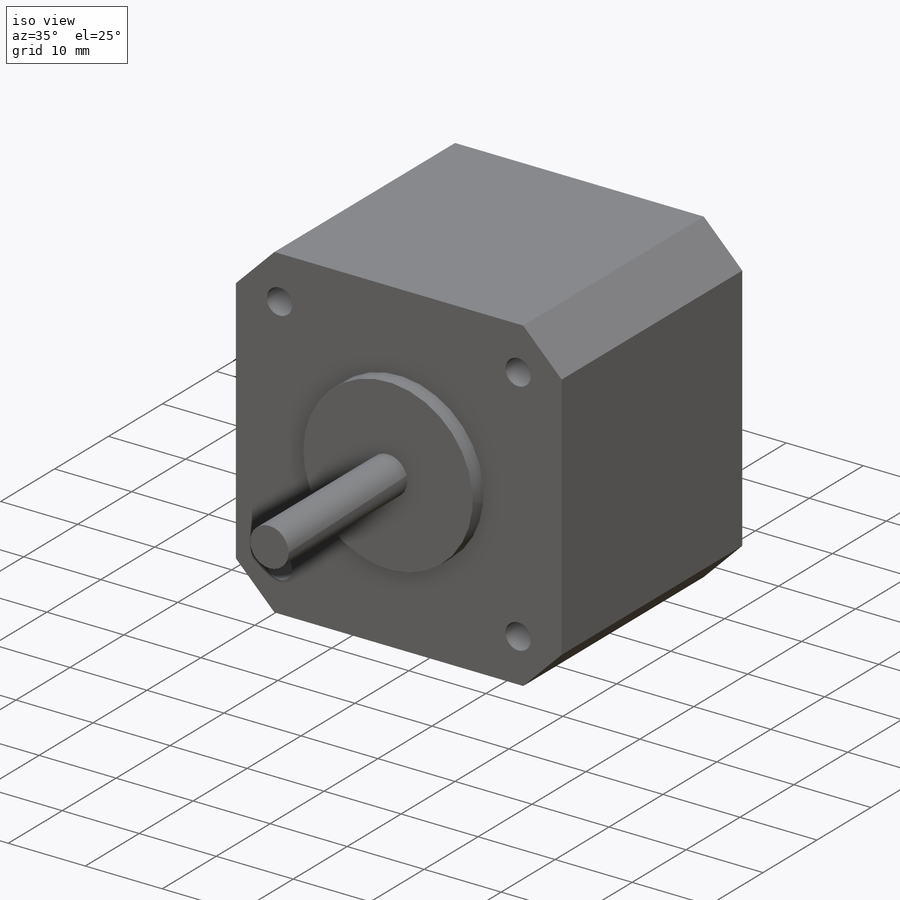
[diagram: iso view]
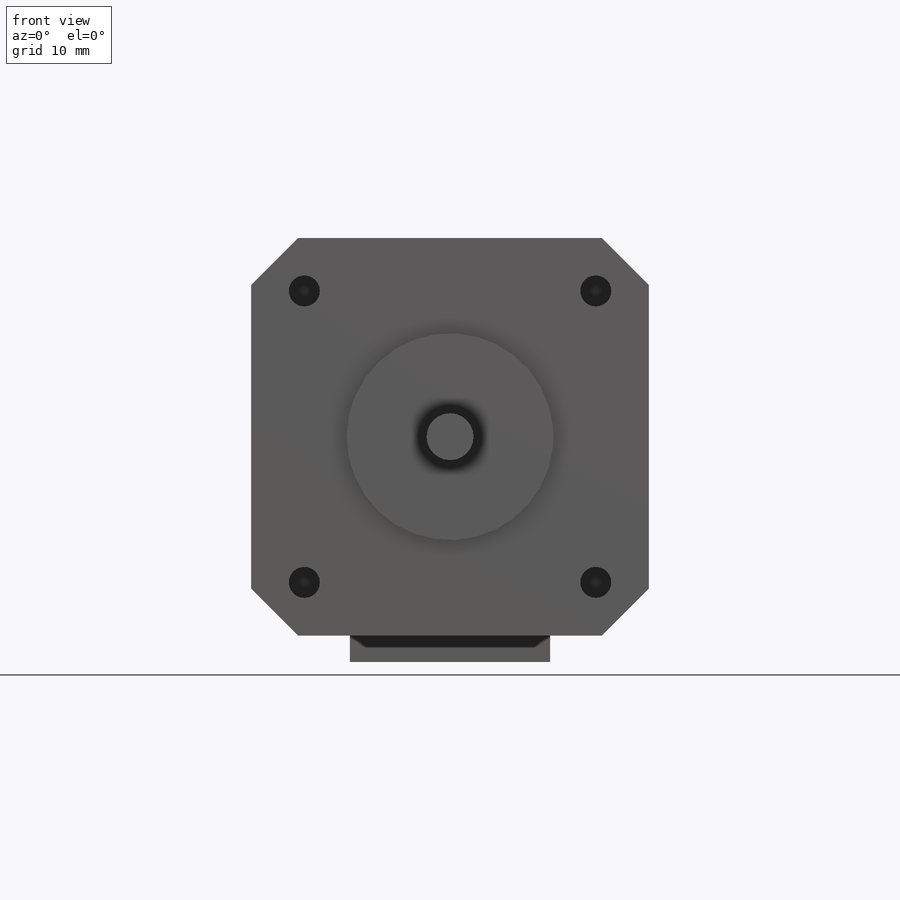
[diagram: front view]
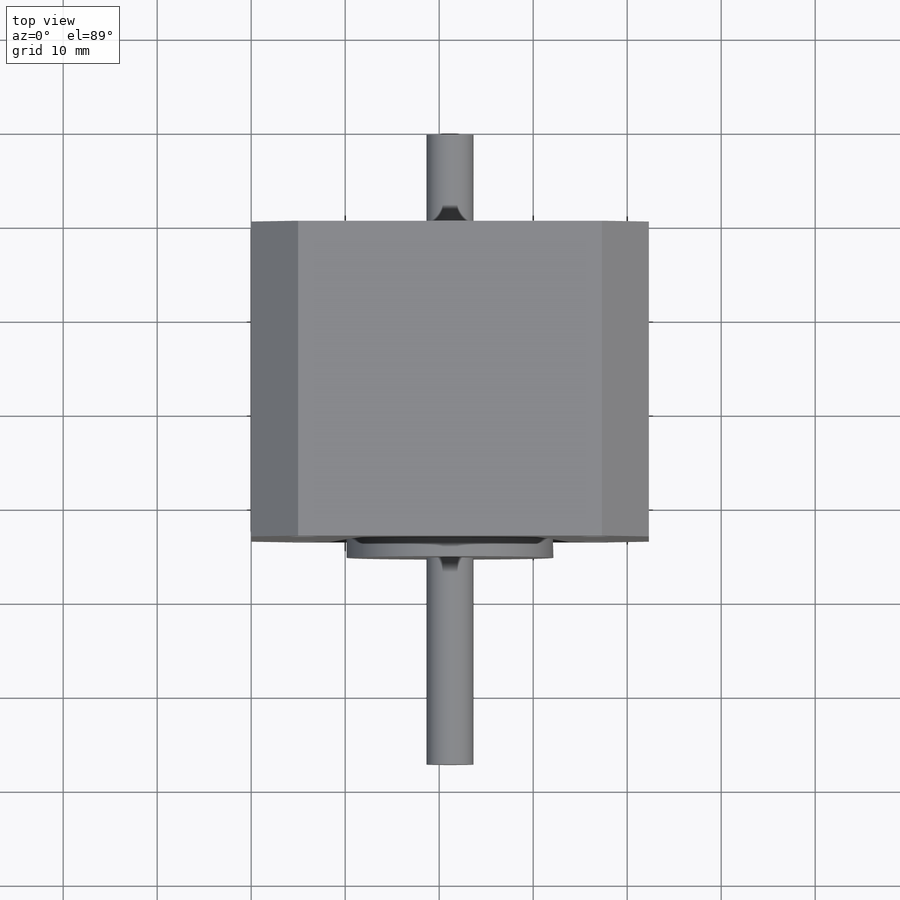
[diagram: top view]
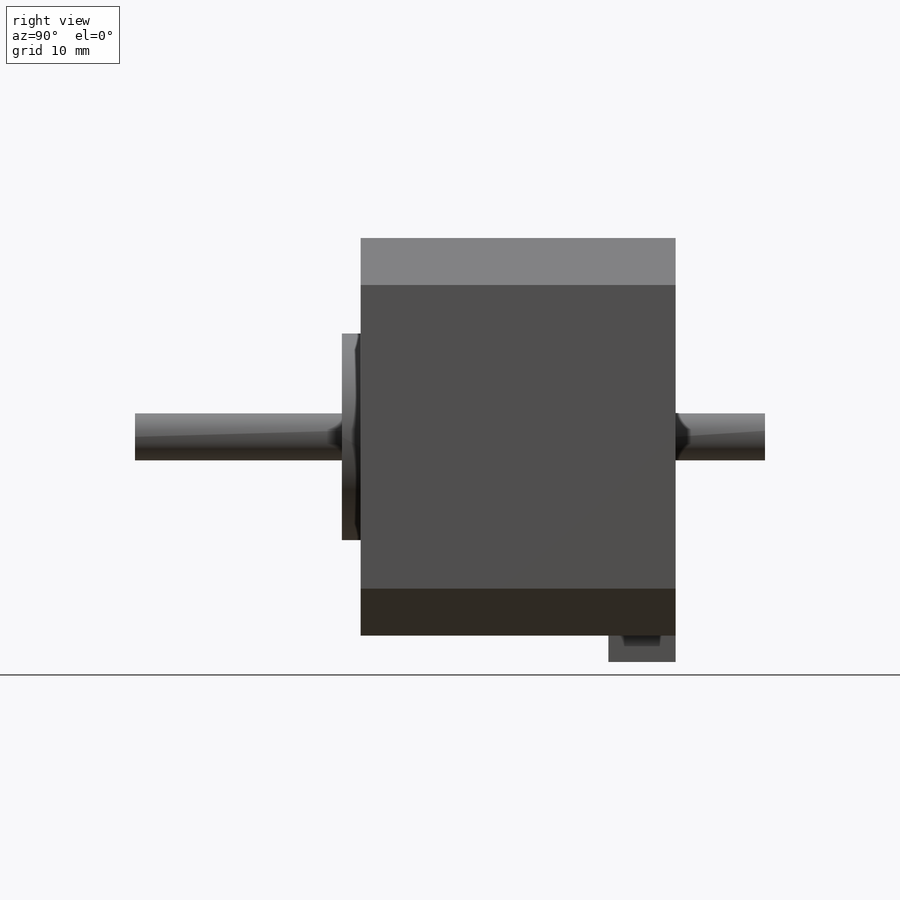
[diagram: right view]
SOLIDWORKS PART (.sldprt)
format: sldprt  version: not decoded by parser v0  size: 203,776 bytes
history: native  units: mm
features: sketch x5, extrude x4, material x1, cut_extrude x1, chamfer x1 (+16 scaffold rows collapsed)
feature tree (28):
  scaffold x16  (default folders/planes/origin — collapsed)
  material  "Material <not specified>"
  sketch  "Sketch1"  dims[D1=42.3mm D2=42.3mm]
  extrude  "Boss-Extrude1"  Depth=33.5mm
  sketch  "Sketch2"  dims[c1.D1=~2.485033mm c1.D3=3.3mm c2.D1=15.5mm c2.D2=15.5mm c2.D5=2.0 c2.D6=2.0 c2.D7=2.0]
  cut_extrude  "Cut-Extrude1"  Depth=10mm
  sketch  "Sketch3"  dims[D1=22.0mm]
  extrude  "Boss-Extrude2"  Depth=2mm
  sketch  "Sketch4"  dims[D1=5.0mm]
  extrude  "Boss-Extrude3"  Depth=22mm
  sketch  "Sketch5"  dims[D1=2.8mm D2=21.3mm D3=10.65mm]
  extrude  "Boss-Extrude4"  Depth=7.15mm
  chamfer  "Chamfer1"  Distance=5mm
decode coverage: 11 of 11 modeling features carry decoded parameters
note: ~ marks probable driven/reference dimensions
note: suppression state not decoded; provenance and decode notes live in map.json
